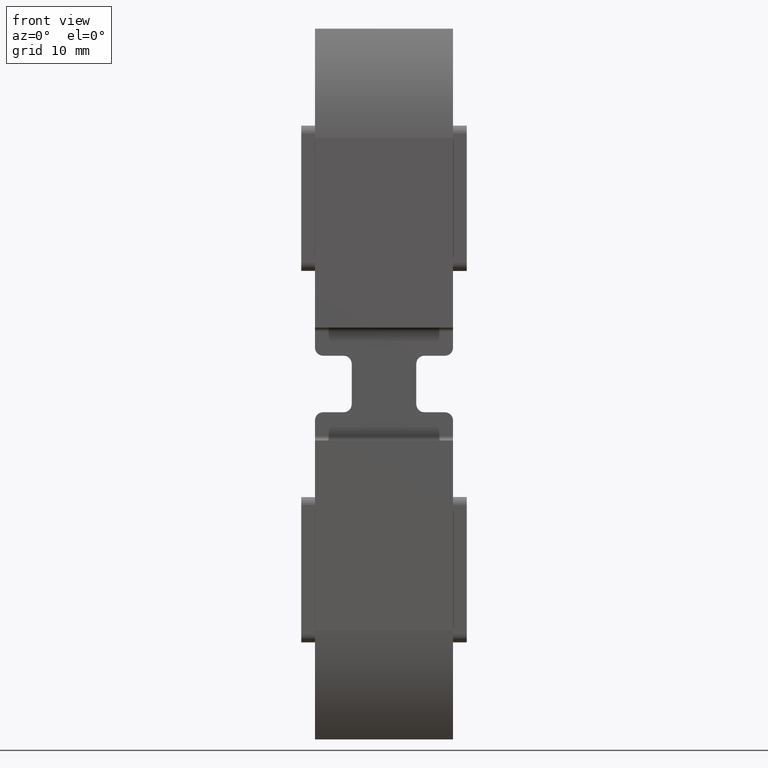
[diagram: clean part render]
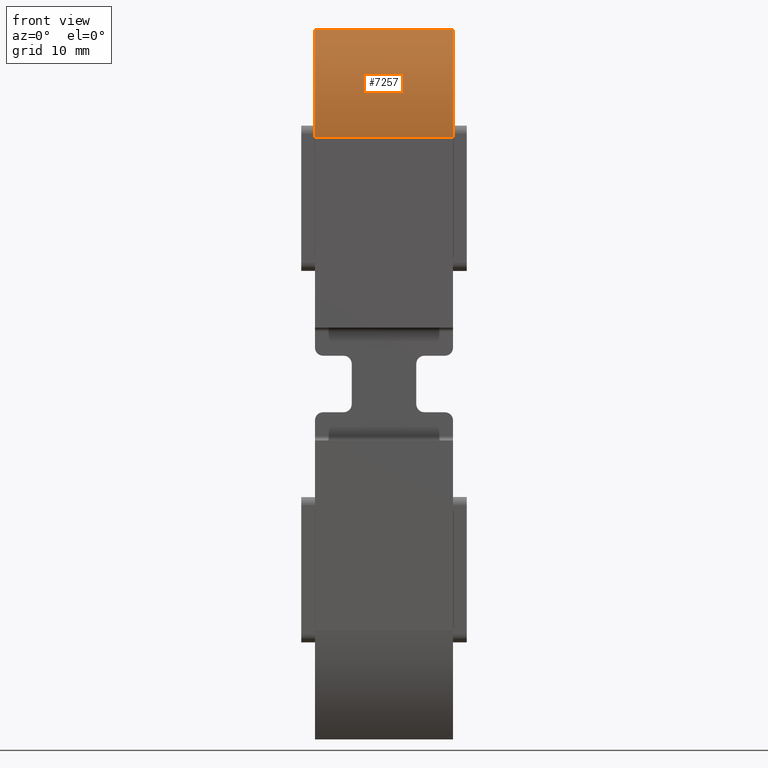
[diagram: same view with one face highlighted and labeled with its STEP entity id]
A machine part, front view. The second image highlights one B-rep face of the part: STEP entity #7257.
In plain terms, the highlighted cylindrical surface (partial cylindrical patch) has radius 22.5 mm, axis along (-1, 0, 0).
Its self-contained STEP definition (entity closure, byte-faithful):
#82 = CARTESIAN_POINT ( 'NONE',  ( 8.550000000000000700, 4.439461883408091200, 43.91927913950525700 ) ) ;
#98 = CARTESIAN_POINT ( 'NONE',  ( 8.550000000000000700, 1.247851192183392400E-014, 30.50037594516294700 ) ) ;
#677 = CYLINDRICAL_SURFACE ( 'NONE', #5021, 22.50000000000000000 ) ;
#686 = EDGE_CURVE ( 'NONE', #6642, #3080, #8551, .T. ) ;
#791 = AXIS2_PLACEMENT_3D ( 'NONE', #819, #12338, #10393 ) ;
#819 = CARTESIAN_POINT ( 'NONE',  ( 8.550000000000000700, 22.50000000000001400, 30.50037594516294000 ) ) ;
#994 = EDGE_LOOP ( 'NONE', ( #6207, #12329, #8539, #7298 ) ) ;
#1344 = DIRECTION ( 'NONE',  ( -1.000000000000000000, 0.0000000000000000000, 0.0000000000000000000 ) ) ;
#2213 = CARTESIAN_POINT ( 'NONE',  ( 8.550000000000000700, 22.50000000000001400, 30.50037594516294000 ) ) ;
#2704 = CARTESIAN_POINT ( 'NONE',  ( 8.550000000000000700, 1.247851192183392400E-014, 30.50037594516294700 ) ) ;
#3080 = VERTEX_POINT ( 'NONE', #7162 ) ;
#3153 = DIRECTION ( 'NONE',  ( 0.0000000000000000000, 4.625929269271485900E-016, 1.000000000000000000 ) ) ;
#3285 = EDGE_CURVE ( 'NONE', #5342, #3080, #7617, .T. ) ;
#3939 = EDGE_CURVE ( 'NONE', #11858, #6642, #10919, .T. ) ;
#3941 = FACE_OUTER_BOUND ( 'NONE', #994, .T. ) ;
#4119 = CARTESIAN_POINT ( 'NONE',  ( -8.550000000000000700, 22.50000000000001400, 30.50037594516294000 ) ) ;
#4221 = DIRECTION ( 'NONE',  ( 0.0000000000000000000, -4.625929269271485900E-016, -1.000000000000000000 ) ) ;
#5021 = AXIS2_PLACEMENT_3D ( 'NONE', #2213, #1344, #4221 ) ;
#5171 = CARTESIAN_POINT ( 'NONE',  ( -8.550000000000000700, 1.247851192183392400E-014, 30.50037594516294700 ) ) ;
#5342 = VERTEX_POINT ( 'NONE', #9335 ) ;
#5818 = DIRECTION ( 'NONE',  ( -1.000000000000000000, 0.0000000000000000000, 0.0000000000000000000 ) ) ;
#5995 = EDGE_CURVE ( 'NONE', #11858, #5342, #11184, .T. ) ;
#6207 = ORIENTED_EDGE ( 'NONE', *, *, #686, .F. ) ;
#6642 = VERTEX_POINT ( 'NONE', #5171 ) ;
#6723 = DIRECTION ( 'NONE',  ( -1.000000000000000000, 0.0000000000000000000, 0.0000000000000000000 ) ) ;
#7162 = CARTESIAN_POINT ( 'NONE',  ( -8.550000000000000700, 4.439461883408091200, 43.91927913950525700 ) ) ;
#7208 = AXIS2_PLACEMENT_3D ( 'NONE', #4119, #8878, #3153 ) ;
#7257 = ADVANCED_FACE ( 'NONE', ( #3941 ), #677, .T. ) ;
#7298 = ORIENTED_EDGE ( 'NONE', *, *, #3285, .T. ) ;
#7617 = LINE ( 'NONE', #82, #9867 ) ;
#8539 = ORIENTED_EDGE ( 'NONE', *, *, #5995, .T. ) ;
#8551 = CIRCLE ( 'NONE', #7208, 22.49999999999999600 ) ;
#8878 = DIRECTION ( 'NONE',  ( -1.000000000000000000, -0.0000000000000000000, -0.0000000000000000000 ) ) ;
#9335 = CARTESIAN_POINT ( 'NONE',  ( 8.550000000000000700, 4.439461883408091200, 43.91927913950525700 ) ) ;
#9867 = VECTOR ( 'NONE', #6723, 1000.000000000000000 ) ;
#10393 = DIRECTION ( 'NONE',  ( 0.0000000000000000000, 4.625929269271485900E-016, 1.000000000000000000 ) ) ;
#10919 = LINE ( 'NONE', #98, #12275 ) ;
#11184 = CIRCLE ( 'NONE', #791, 22.49999999999999600 ) ;
#11858 = VERTEX_POINT ( 'NONE', #2704 ) ;
#12275 = VECTOR ( 'NONE', #5818, 1000.000000000000000 ) ;
#12329 = ORIENTED_EDGE ( 'NONE', *, *, #3939, .F. ) ;
#12338 = DIRECTION ( 'NONE',  ( -1.000000000000000000, -0.0000000000000000000, -0.0000000000000000000 ) ) ;